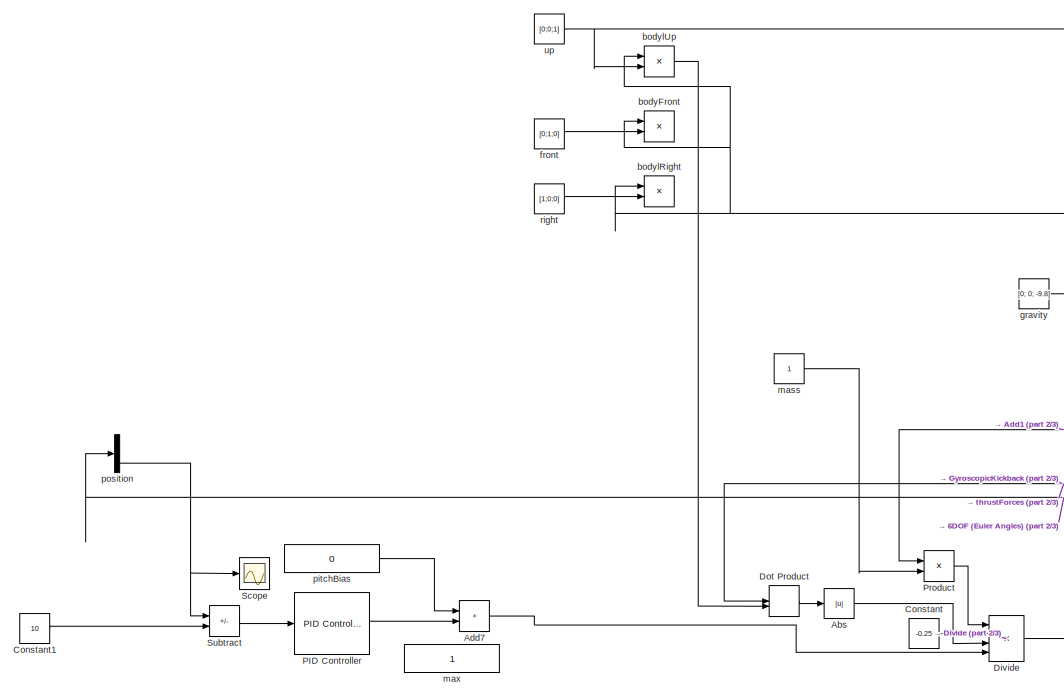
[diagram: root canvas - part 1/3, top left region]
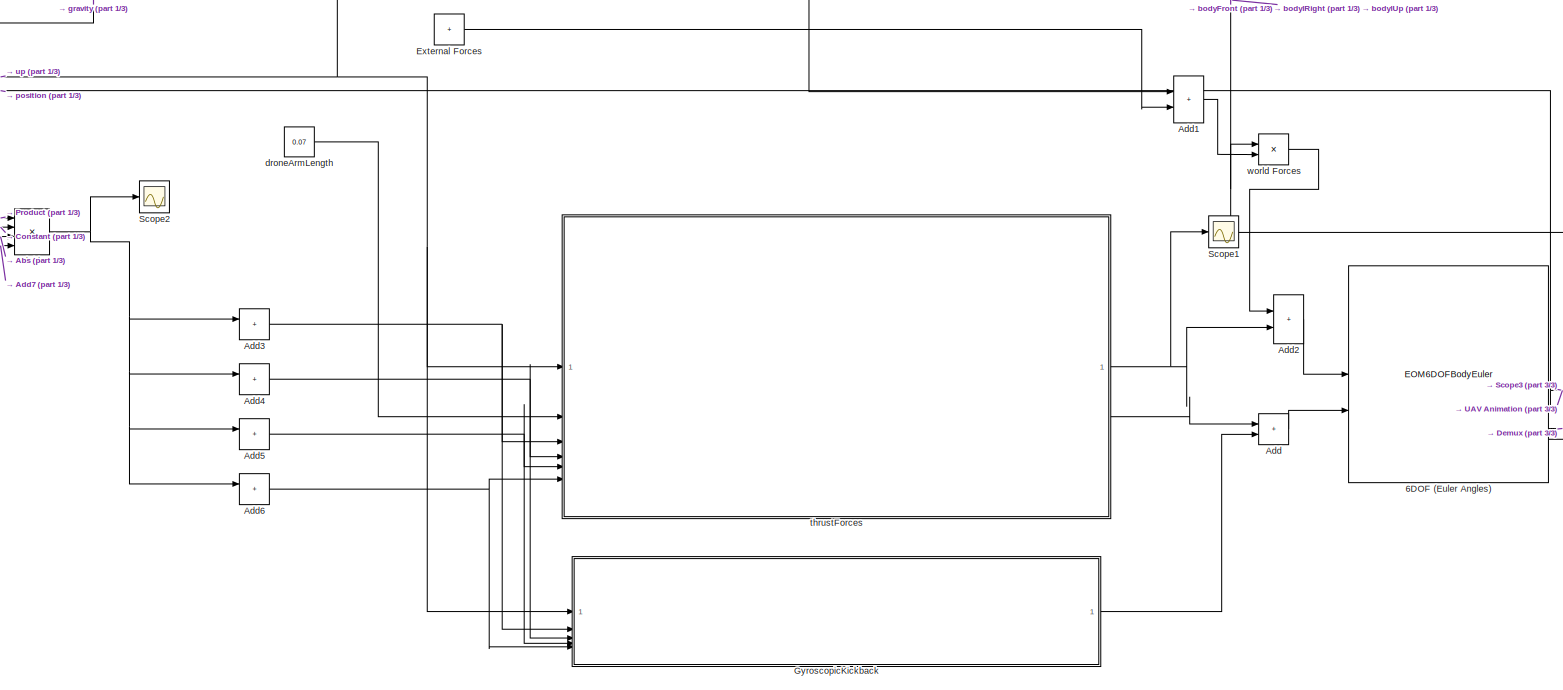
[diagram: root canvas - part 2/3, bottom center region]
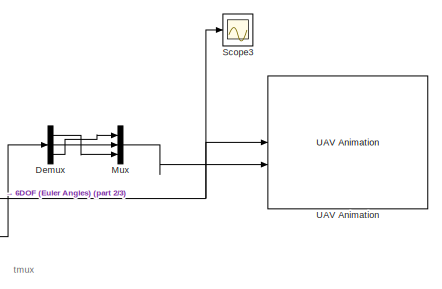
[diagram: root canvas - part 3/3, bottom right region]
MODEL slx_57b0891e0887
KIND model
CONFIG AbsTol = auto
CONFIG EnableMultiTasking = off
CONFIG FixedStep = auto
CONFIG MaxStep = auto
CONFIG MinStep = auto
CONFIG RelTol = 1e-3
CONFIG SampleTimeConstraint = Unconstrained
CONFIG SolverName = VariableStepAuto
CONFIG StartTime = 0.0
CONFIG StopTime = 20
BLOCK [EOM6DOFBodyEuler] 6DOF (Euler Angles)
  eul_0 = [0.02 0 0]
BLOCK [Abs] Abs
  SaturateOnIntegerOverflow = off
BLOCK [Sum] Add
  IconShape = rectangular
BLOCK [Sum] Add1
  IconShape = rectangular
BLOCK [Sum] Add2
  IconShape = rectangular
BLOCK [Sum] Add3
  IconShape = rectangular
BLOCK [Sum] Add4
  IconShape = rectangular
BLOCK [Sum] Add5
  IconShape = rectangular
BLOCK [Sum] Add6
  IconShape = rectangular
BLOCK [Sum] Add7
  IconShape = rectangular
BLOCK [Constant] Constant
  Value = -0.25
BLOCK [Constant] Constant1
  Value = 10
BLOCK [Demux] Demux
  Outputs = 3
BLOCK [Product] Divide
  Inputs = **/*
BLOCK [DotProduct] Dot Product
  OutDataTypeStr = Inherit: Inherit via internal rule
BLOCK [Sum] External Forces
  IconShape = rectangular
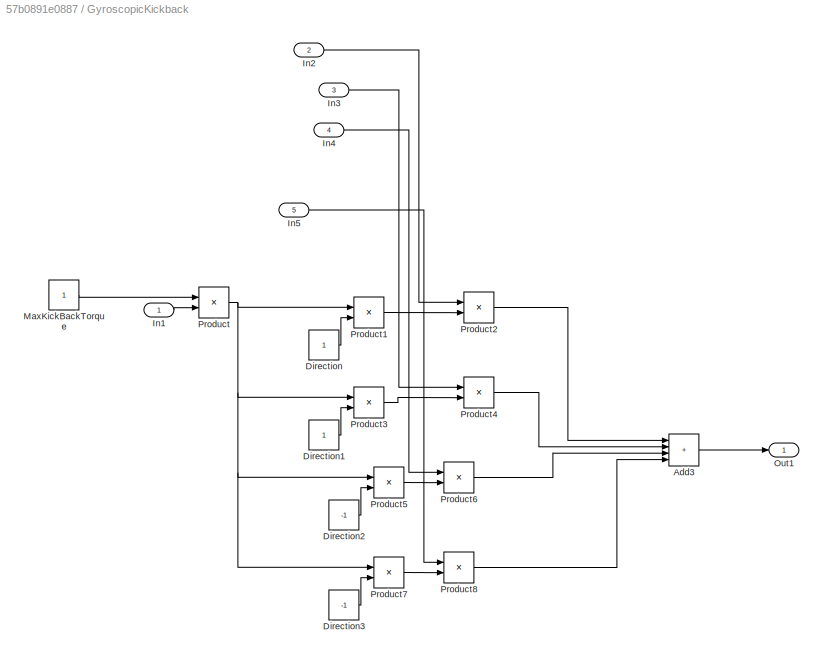
BLOCK [SubSystem] GyroscopicKickback
BLOCK [Sum] GyroscopicKickback/Add3
  IconShape = rectangular
  Inputs = ++++
BLOCK [Constant] GyroscopicKickback/Direction
BLOCK [Constant] GyroscopicKickback/Direction1
BLOCK [Constant] GyroscopicKickback/Direction2
  Value = -1
BLOCK [Constant] GyroscopicKickback/Direction3
  Value = -1
BLOCK [Inport] GyroscopicKickback/In1
BLOCK [Inport] GyroscopicKickback/In2
  Port = 2
BLOCK [Inport] GyroscopicKickback/In3
  Port = 3
BLOCK [Inport] GyroscopicKickback/In4
  Port = 4
BLOCK [Inport] GyroscopicKickback/In5
  Port = 5
BLOCK [Constant] GyroscopicKickback/MaxKickBackTorque
BLOCK [Outport] GyroscopicKickback/Out1
BLOCK [Product] GyroscopicKickback/Product
BLOCK [Product] GyroscopicKickback/Product1
BLOCK [Product] GyroscopicKickback/Product2
BLOCK [Product] GyroscopicKickback/Product3
BLOCK [Product] GyroscopicKickback/Product4
BLOCK [Product] GyroscopicKickback/Product5
BLOCK [Product] GyroscopicKickback/Product6
BLOCK [Product] GyroscopicKickback/Product7
BLOCK [Product] GyroscopicKickback/Product8
BLOCK [Mux] Mux
  DisplayOption = bar
  Inputs = 3
BLOCK [Reference] PID Controller  REF=slpidlib/PID Controller
  LibrarySourceBlock = simulink/Continuous/PID Controller
  SourceBlock = slpidlib/PID Controller
  SourceType = PID 1dof
BLOCK [Product] Product
  Multiplication = Matrix(*)
BLOCK [Scope] Scope
  ActiveDisplayYMaximum = 27.239136605292877
  ActiveDisplayYMinimum = 0.561749117999006
  Floating = off
  GraphicalSettings = {"Style":{"BackgroundColor":[0.12941176470588237,0.12941176470588237,0.12941176470588237],"AxesColor":[0.07058823529411765,0.07058823529411765,0.07058823529411765],"LabelsColor":[0.8509803921568627,0.8509803921568627,0.8509803921568627],"PreserveColors":false,"Visible":[true],"LineStyle":["-"],"LineWidth":[1.5],"BarWidth":[0.9],"LineColor":["auto"],"LineFaceAlpha":[1],"LineEdgeAlpha":[1],"Marker":...<+2321ch>
  MultipleDisplayCache = [{"MaxYLimMag":846.79669365178722,"MaxYLimReal":27.239136605292877,"MinYLimMag":0,"MinYLimReal":0.561749117999006,"PlotAsMagnitudePhase":false,"ShowGrid":true,"ShowLegend":false,"Title":"%<SignalLabel>","YLabel":""}]
  NumInputPorts = 1
  ScopeFrameLocation = window
  WasSavedAsWebScope = on
  WindowPosition = [1354.000000,13.000000,555.000000,986.000000,]
BLOCK [Scope] Scope1
  ActiveDisplayYMaximum = 1
  ActiveDisplayYMinimum = -1
  DataLoggingVariableName = ScopeData1
  Floating = off
  GraphicalSettings = {"AxesScalingProperties":{"AlignXAxis":"Center","AlignYAxis":"Center","AutoScaleXAxisLimits":false,"AxesScaling":"Manual","AxesScalingNumUpdates":10,"ExpandOnly":true,"ScaleAxesLimitsAtStop":false,"XAxisDataRange":100,"YAxisDataRange":80},"DisplayProperties":{"ColorOrder":["auto","auto","auto","auto","auto","auto","auto","auto","auto","auto","auto","auto","auto","auto","auto","auto","auto","auto",...<+2272ch>
  MultipleDisplayCache = [{"MaxYLimMag":1,"MaxYLimReal":1,"MinYLimMag":0,"MinYLimReal":-1,"PlotAsMagnitudePhase":false,"ShowGrid":true,"ShowLegend":false,"Title":"%<SignalLabel>","YLabel":""}]
  NumInputPorts = 1
  ScopeFrameLocation = window
  WasSavedAsWebScope = on
  WindowPosition = [680.000000,330.000000,560.000000,420.000000,]
BLOCK [Scope] Scope2
  ActiveDisplayYMaximum = 1291.7103665303814
  ActiveDisplayYMinimum = -853.91857635505107
  DataLoggingVariableName = ScopeData2
  Floating = off
  GraphicalSettings = {"AxesScalingProperties":{"AlignXAxis":"Center","AlignYAxis":"Center","AutoScaleXAxisLimits":false,"AxesScaling":"Manual","AxesScalingNumUpdates":10,"ExpandOnly":true,"ScaleAxesLimitsAtStop":false,"XAxisDataRange":100,"YAxisDataRange":80},"DisplayProperties":{"ColorOrder":["auto","auto","auto","auto","auto","auto","auto","auto","auto","auto","auto","auto","auto","auto","auto","auto","auto","auto",...<+2240ch>
  MultipleDisplayCache = [{"MaxYLimMag":7839.478050281381,"MaxYLimReal":1291.7103665303814,"MinYLimMag":0,"MinYLimReal":-853.91857635505107,"PlotAsMagnitudePhase":false,"ShowGrid":true,"ShowLegend":false,"Title":"%<SignalLabel>","YLabel":""}]
  NumInputPorts = 1
  ScopeFrameLocation = window
  WasSavedAsWebScope = on
  WindowPosition = [680.000000,330.000000,560.000000,420.000000,]
BLOCK [Scope] Scope3
  ActiveDisplayYMaximum = 489.22748668542886
  ActiveDisplayYMinimum = -146.66616230294065
  DataLoggingVariableName = ScopeData3
  Floating = off
  GraphicalSettings = {"Style":{"BackgroundColor":[0.12941176470588237,0.12941176470588237,0.12941176470588237],"AxesColor":[0.07058823529411765,0.07058823529411765,0.07058823529411765],"LabelsColor":[0.8509803921568627,0.8509803921568627,0.8509803921568627],"PreserveColors":false,"Visible":[true,true,true],"LineStyle":["-","-","-"],"LineWidth":[1.5,1.5,1.5],"BarWidth":[0.9,0.9,0.9],"LineColor":["auto","auto","auto"],"...<+2324ch>
  MultipleDisplayCache = [{"MaxYLimMag":45.662496781591706,"MaxYLimReal":489.22748668542886,"MinYLimMag":0,"MinYLimReal":-146.66616230294065,"PlotAsMagnitudePhase":false,"ShowGrid":true,"ShowLegend":false,"Title":"%<SignalLabel>","YLabel":""}]
  NumInputPorts = 1
  ScopeFrameLocation = window
  WasSavedAsWebScope = on
  WindowPosition = [968.000000,13.000000,941.000000,1017.000000,]
BLOCK [Sum] Subtract
  IconShape = rectangular
  Inputs = +-
BLOCK [Reference] UAV Animation  REF=uavutilslib/UAV Animation
  SourceBlock = uavutilslib/UAV Animation
  SourceType = uav.sluav.internal.system.UAVAnimation
BLOCK [Product] bodyFront
  Multiplication = Matrix(*)
BLOCK [Product] bodylRight
  Multiplication = Matrix(*)
BLOCK [Product] bodylUp
  Multiplication = Matrix(*)
BLOCK [Constant] droneArmLength
  Value = 0.07
  VectorParams1D = off
BLOCK [Constant] front
  Value = [0;1;0]
  VectorParams1D = off
BLOCK [Constant] gravity
  Value = [0; 0; -9.8]
  VectorParams1D = off
BLOCK [Constant] mass
BLOCK [Constant] max
BLOCK [Constant] pitchBias
  Value = 0
BLOCK [Demux] position
  Outputs = 3
BLOCK [Constant] right
  Value = [1;0;0]
  VectorParams1D = off
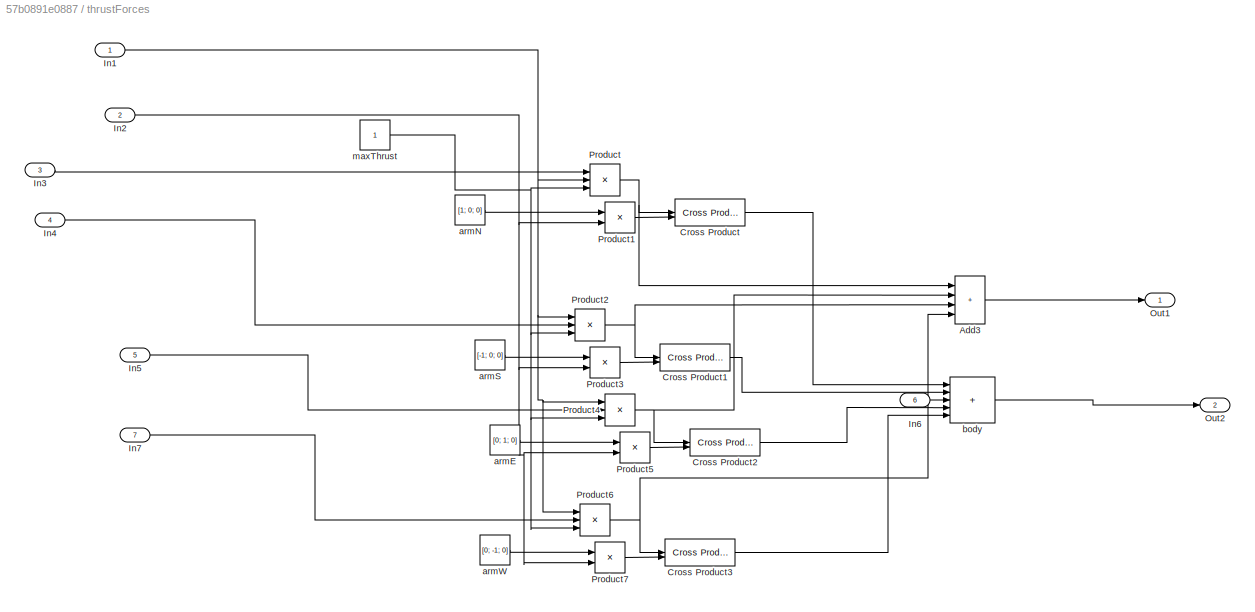
BLOCK [SubSystem] thrustForces
BLOCK [Sum] thrustForces/Add3
  IconShape = rectangular
  Inputs = ++++
BLOCK [Reference] thrustForces/Cross Product  REF=matrix_library/Cross Product
  LibrarySourceBlock = simulink/Matrix\nOperations/Cross Product
  SourceBlock = matrix_library/Cross Product
  SourceType = CrossProduct
BLOCK [Reference] thrustForces/Cross Product1  REF=matrix_library/Cross Product
  LibrarySourceBlock = simulink/Matrix\nOperations/Cross Product
  SourceBlock = matrix_library/Cross Product
  SourceType = CrossProduct
BLOCK [Reference] thrustForces/Cross Product2  REF=matrix_library/Cross Product
  LibrarySourceBlock = simulink/Matrix\nOperations/Cross Product
  SourceBlock = matrix_library/Cross Product
  SourceType = CrossProduct
BLOCK [Reference] thrustForces/Cross Product3  REF=matrix_library/Cross Product
  LibrarySourceBlock = simulink/Matrix\nOperations/Cross Product
  SourceBlock = matrix_library/Cross Product
  SourceType = CrossProduct
BLOCK [Inport] thrustForces/In1
BLOCK [Inport] thrustForces/In2
  Port = 2
BLOCK [Inport] thrustForces/In3
  Port = 3
BLOCK [Inport] thrustForces/In4
  Port = 4
BLOCK [Inport] thrustForces/In5
  Port = 5
BLOCK [Inport] thrustForces/In6
  Port = 6
BLOCK [Inport] thrustForces/In7
  Port = 7
BLOCK [Outport] thrustForces/Out1
BLOCK [Outport] thrustForces/Out2
  Port = 2
BLOCK [Product] thrustForces/Product
  Inputs = 3
BLOCK [Product] thrustForces/Product1
BLOCK [Product] thrustForces/Product2
  Inputs = 3
BLOCK [Product] thrustForces/Product3
BLOCK [Product] thrustForces/Product4
  Inputs = 3
BLOCK [Product] thrustForces/Product5
BLOCK [Product] thrustForces/Product6
  Inputs = 3
BLOCK [Product] thrustForces/Product7
BLOCK [Constant] thrustForces/armE
  Value = [0; 1; 0]
  VectorParams1D = off
BLOCK [Constant] thrustForces/armN
  Value = [1; 0; 0]
  VectorParams1D = off
BLOCK [Constant] thrustForces/armS
  Value = [-1; 0; 0]
  VectorParams1D = off
BLOCK [Constant] thrustForces/armW
  Value = [0; -1; 0]
  VectorParams1D = off
BLOCK [Sum] thrustForces/body
  IconShape = rectangular
  Inputs = +++++
BLOCK [Constant] thrustForces/maxThrust
BLOCK [Constant] up
  Value = [0;0;1]
  VectorParams1D = off
BLOCK [Product] world Forces
  Multiplication = Matrix(*)
ANNOTATION (root): tmux
NET 6DOF (Euler Angles):2 -> Scope3:1, UAV Animation:1, position:1
LINE 6DOF (Euler Angles):3 -> Demux:1
NET 6DOF (Euler Angles):4 -> bodyFront:1, bodylRight:1, bodylUp:1, world Forces:1
LINE Abs:1 -> Divide:3
LINE Add1:1 -> world Forces:2
LINE Add2:1 -> 6DOF (Euler Angles):1
NET Add3:1 -> GyroscopicKickback:2, thrustForces:3
NET Add4:1 -> GyroscopicKickback:3, thrustForces:4
NET Add5:1 -> GyroscopicKickback:4, thrustForces:5
NET Add6:1 -> GyroscopicKickback:5, thrustForces:7
LINE Add7:1 -> Divide:4
LINE Add:1 -> 6DOF (Euler Angles):2
LINE Constant1:1 -> Subtract:2
LINE Constant:1 -> Divide:2
LINE Demux:1 -> Mux:3
LINE Demux:2 -> Mux:2
LINE Demux:3 -> Mux:1
NET Divide:1 -> Add3:1, Add4:1, Add5:1, Add6:1, Scope2:1
LINE Dot Product:1 -> Abs:1
LINE External Forces:1 -> Add1:2
LINE GyroscopicKickback/Add3:1 -> GyroscopicKickback/Out1:1
LINE GyroscopicKickback/Direction1:1 -> GyroscopicKickback/Product3:2
LINE GyroscopicKickback/Direction2:1 -> GyroscopicKickback/Product5:2
LINE GyroscopicKickback/Direction3:1 -> GyroscopicKickback/Product7:2
LINE GyroscopicKickback/Direction:1 -> GyroscopicKickback/Product1:2
LINE GyroscopicKickback/In1:1 -> GyroscopicKickback/Product:2
LINE GyroscopicKickback/In2:1 -> GyroscopicKickback/Product2:1
LINE GyroscopicKickback/In3:1 -> GyroscopicKickback/Product4:1
LINE GyroscopicKickback/In4:1 -> GyroscopicKickback/Product6:1
LINE GyroscopicKickback/In5:1 -> GyroscopicKickback/Product8:1
LINE GyroscopicKickback/MaxKickBackTorque:1 -> GyroscopicKickback/Product:1
LINE GyroscopicKickback/Product1:1 -> GyroscopicKickback/Product2:2
LINE GyroscopicKickback/Product2:1 -> GyroscopicKickback/Add3:1
LINE GyroscopicKickback/Product3:1 -> GyroscopicKickback/Product4:2
LINE GyroscopicKickback/Product4:1 -> GyroscopicKickback/Add3:2
LINE GyroscopicKickback/Product5:1 -> GyroscopicKickback/Product6:2
LINE GyroscopicKickback/Product6:1 -> GyroscopicKickback/Add3:3
LINE GyroscopicKickback/Product7:1 -> GyroscopicKickback/Product8:2
LINE GyroscopicKickback/Product8:1 -> GyroscopicKickback/Add3:4
NET GyroscopicKickback/Product:1 -> GyroscopicKickback/Product1:1, GyroscopicKickback/Product3:1, GyroscopicKickback/Product5:1, GyroscopicKickback/Product7:1
LINE GyroscopicKickback:1 -> Add:2
LINE Mux:1 -> UAV Animation:2
LINE PID Controller:1 -> Add7:2
LINE Product:1 -> Divide:1
LINE Subtract:1 -> PID Controller:1
LINE bodylUp:1 -> Dot Product:2
LINE droneArmLength:1 -> thrustForces:2
LINE front:1 -> bodyFront:2
NET gravity:1 -> Add1:1, Product:1
LINE mass:1 -> Product:2
LINE pitchBias:1 -> Add7:1
NET position:3 -> Scope:1, Subtract:1
LINE right:1 -> bodylRight:2
LINE thrustForces/Add3:1 -> thrustForces/Out1:1
LINE thrustForces/Cross Product1:1 -> thrustForces/body:2
LINE thrustForces/Cross Product2:1 -> thrustForces/body:4
LINE thrustForces/Cross Product3:1 -> thrustForces/body:5
LINE thrustForces/Cross Product:1 -> thrustForces/body:1
NET thrustForces/In1:1 -> thrustForces/Product2:1, thrustForces/Product4:1, thrustForces/Product6:1, thrustForces/Product:2
NET thrustForces/In2:1 -> thrustForces/Product1:2, thrustForces/Product3:2, thrustForces/Product5:2, thrustForces/Product7:2
LINE thrustForces/In3:1 -> thrustForces/Product:1
LINE thrustForces/In4:1 -> thrustForces/Product2:2
LINE thrustForces/In5:1 -> thrustForces/Product4:2
LINE thrustForces/In6:1 -> thrustForces/body:3
LINE thrustForces/In7:1 -> thrustForces/Product6:2
LINE thrustForces/Product1:1 -> thrustForces/Cross Product:2
NET thrustForces/Product2:1 -> thrustForces/Add3:3, thrustForces/Cross Product1:1
LINE thrustForces/Product3:1 -> thrustForces/Cross Product1:2
NET thrustForces/Product4:1 -> thrustForces/Add3:2, thrustForces/Cross Product2:1
LINE thrustForces/Product5:1 -> thrustForces/Cross Product2:2
NET thrustForces/Product6:1 -> thrustForces/Add3:4, thrustForces/Cross Product3:1
LINE thrustForces/Product7:1 -> thrustForces/Cross Product3:2
NET thrustForces/Product:1 -> thrustForces/Add3:1, thrustForces/Cross Product:1
LINE thrustForces/armE:1 -> thrustForces/Product5:1
LINE thrustForces/armN:1 -> thrustForces/Product1:1
LINE thrustForces/armS:1 -> thrustForces/Product3:1
LINE thrustForces/armW:1 -> thrustForces/Product7:1
LINE thrustForces/body:1 -> thrustForces/Out2:1
NET thrustForces/maxThrust:1 -> thrustForces/Product2:3, thrustForces/Product4:3, thrustForces/Product6:3, thrustForces/Product:3
NET thrustForces:1 -> Add2:2, Scope1:1
LINE thrustForces:2 -> Add:1
NET up:1 -> Dot Product:1, GyroscopicKickback:1, bodylUp:2, thrustForces:1
LINE world Forces:1 -> Add2:1
note: NET lines group one-source signal fan-out (src -> all destinations, sorted); 1:1 wires keep LINE
